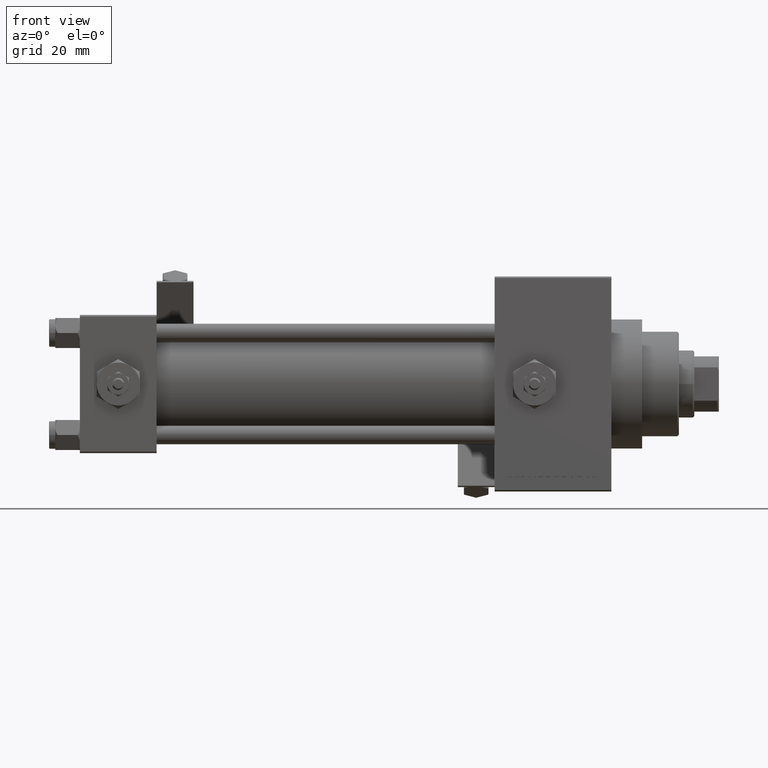
[diagram: clean part render]
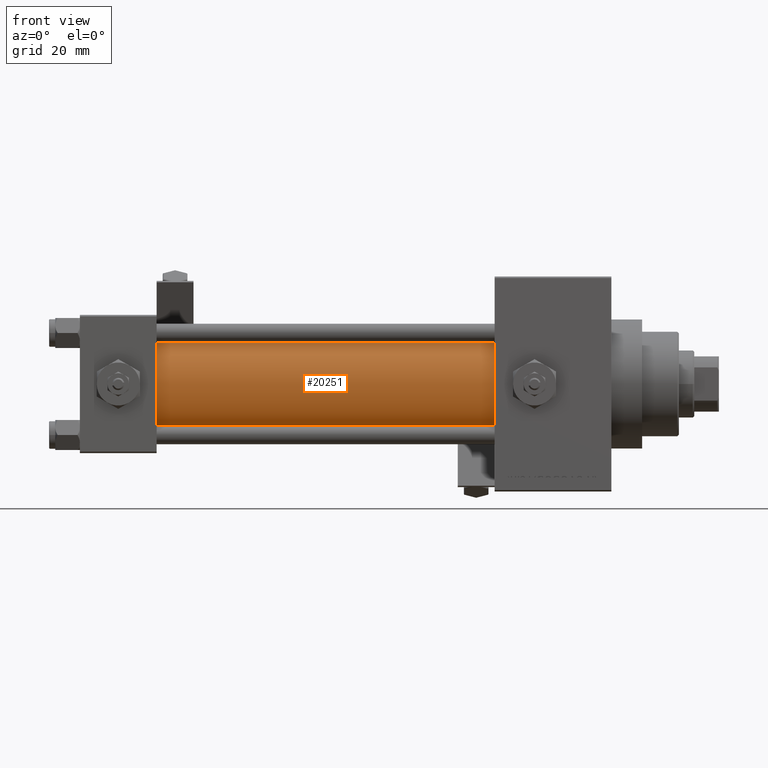
[diagram: same view with one face highlighted and labeled with its STEP entity id]
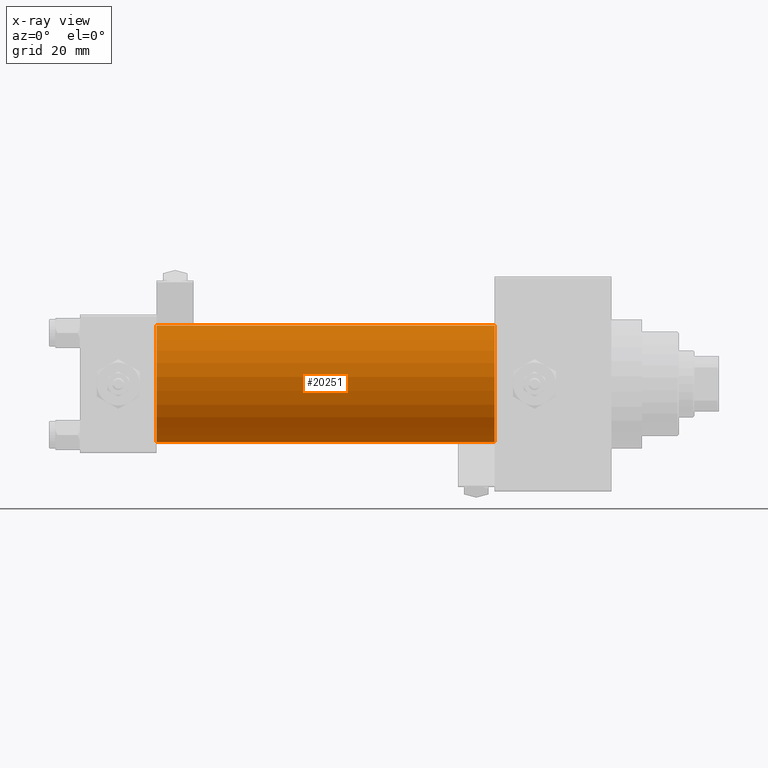
[diagram: x-ray of the same camera — body ghosted, the highlighted face saturated]
A machine part, front view. The second image highlights one B-rep face of the part: STEP entity #20251.
The next image is the same camera in x-ray: the body ghosted, the highlighted face saturated — about 0% of this face is hidden behind the body in this view.
In plain terms, the highlighted cylindrical surface (partial cylindrical patch) has radius 19 mm, axis along (-1, -0, -0).
Its self-contained STEP definition (entity closure, byte-faithful):
#658 = AXIS2_PLACEMENT_3D ( 'NONE', #10297, #2421, #29563 ) ;
#1725 = EDGE_LOOP ( 'NONE', ( #12366, #20562, #28479, #9227 ) ) ;
#2156 = DIRECTION ( 'NONE',  ( 0.000000000000000000, 0.000000000000000000, -1.000000000000000000 ) ) ;
#2421 = DIRECTION ( 'NONE',  ( -1.000000000000000000, -0.000000000000000000, -0.000000000000000000 ) ) ;
#2687 = VERTEX_POINT ( 'NONE', #15192 ) ;
#7725 = CARTESIAN_POINT ( 'NONE',  ( 24.99999999999999289, -2.752562955852396712E-16, -19.00000000000000000 ) ) ;
#9227 = ORIENTED_EDGE ( 'NONE', *, *, #27823, .T. ) ;
#9494 = VERTEX_POINT ( 'NONE', #48294 ) ;
#10297 = CARTESIAN_POINT ( 'NONE',  ( 135.0000000000000000, -2.602085213965210642E-15, 0.000000000000000000 ) ) ;
#12366 = ORIENTED_EDGE ( 'NONE', *, *, #28319, .F. ) ;
#12638 = AXIS2_PLACEMENT_3D ( 'NONE', #21704, #36906, #2156 ) ;
#15192 = CARTESIAN_POINT ( 'NONE',  ( 135.0000000000000000, -2.602085213965210642E-15, 19.00000000000000000 ) ) ;
#17797 = DIRECTION ( 'NONE',  ( 1.000000000000000000, -0.000000000000000000, 0.000000000000000000 ) ) ;
#20251 = ADVANCED_FACE ( 'NONE', ( #25530 ), #22452, .T. ) ;
#20562 = ORIENTED_EDGE ( 'NONE', *, *, #31409, .F. ) ;
#21704 = CARTESIAN_POINT ( 'NONE',  ( 135.0000000000000000, -2.602085213965210642E-15, 0.000000000000000000 ) ) ;
#21885 = VECTOR ( 'NONE', #29726, 1000.000000000000000 ) ;
#22422 = VERTEX_POINT ( 'NONE', #7725 ) ;
#22452 = CYLINDRICAL_SURFACE ( 'NONE', #658, 19.00000000000000000 ) ;
#22619 = VERTEX_POINT ( 'NONE', #34282 ) ;
#25159 = DIRECTION ( 'NONE',  ( 0.000000000000000000, 0.000000000000000000, 1.000000000000000000 ) ) ;
#25530 = FACE_OUTER_BOUND ( 'NONE', #1725, .T. ) ;
#25539 = CARTESIAN_POINT ( 'NONE',  ( 135.0000000000000000, -2.752562955852396712E-16, -19.00000000000000000 ) ) ;
#27823 = EDGE_CURVE ( 'NONE', #9494, #22422, #48134, .T. ) ;
#28319 = EDGE_CURVE ( 'NONE', #22619, #22422, #44823, .T. ) ;
#28479 = ORIENTED_EDGE ( 'NONE', *, *, #44912, .T. ) ;
#29563 = DIRECTION ( 'NONE',  ( 0.000000000000000000, 0.000000000000000000, 1.000000000000000000 ) ) ;
#29726 = DIRECTION ( 'NONE',  ( -1.000000000000000000, -0.000000000000000000, -0.000000000000000000 ) ) ;
#31409 = EDGE_CURVE ( 'NONE', #2687, #22619, #46670, .T. ) ;
#33541 = AXIS2_PLACEMENT_3D ( 'NONE', #40366, #17797, #25159 ) ;
#34282 = CARTESIAN_POINT ( 'NONE',  ( 135.0000000000000000, -2.752562955852396712E-16, -19.00000000000000000 ) ) ;
#36906 = DIRECTION ( 'NONE',  ( 1.000000000000000000, 0.000000000000000000, 0.000000000000000000 ) ) ;
#38431 = VECTOR ( 'NONE', #44071, 1000.000000000000000 ) ;
#40366 = CARTESIAN_POINT ( 'NONE',  ( 24.99999999999999289, -2.602085213965210642E-15, 0.000000000000000000 ) ) ;
#41153 = LINE ( 'NONE', #44979, #21885 ) ;
#44071 = DIRECTION ( 'NONE',  ( -1.000000000000000000, -0.000000000000000000, -0.000000000000000000 ) ) ;
#44823 = LINE ( 'NONE', #25539, #38431 ) ;
#44912 = EDGE_CURVE ( 'NONE', #2687, #9494, #41153, .T. ) ;
#44979 = CARTESIAN_POINT ( 'NONE',  ( 135.0000000000000000, -2.602085213965210642E-15, 19.00000000000000000 ) ) ;
#46670 = CIRCLE ( 'NONE', #12638, 19.00000000000000000 ) ;
#48134 = CIRCLE ( 'NONE', #33541, 19.00000000000000000 ) ;
#48294 = CARTESIAN_POINT ( 'NONE',  ( 24.99999999999999289, -2.602085213965210642E-15, 19.00000000000000000 ) ) ;